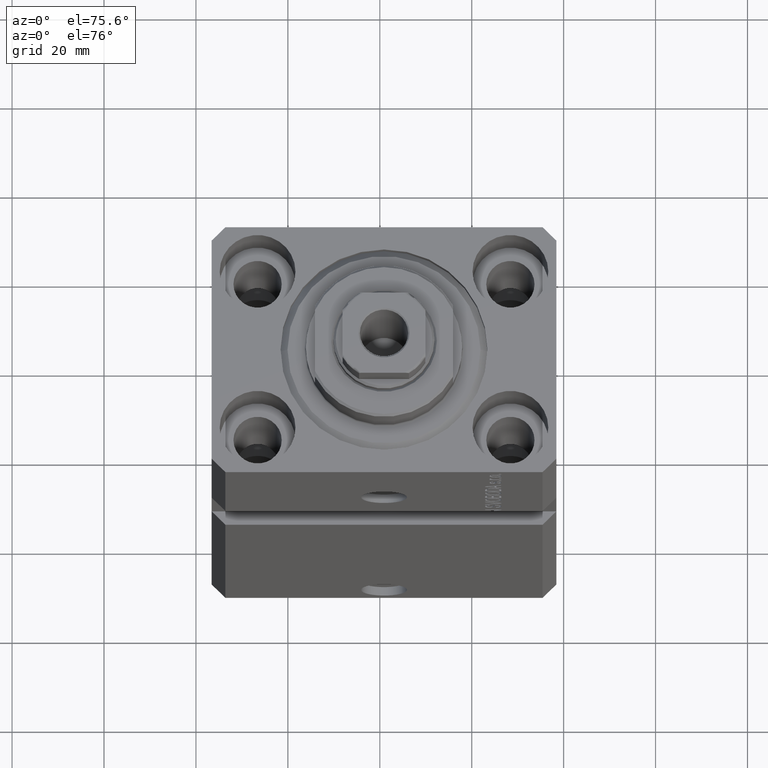
[diagram: clean part render]
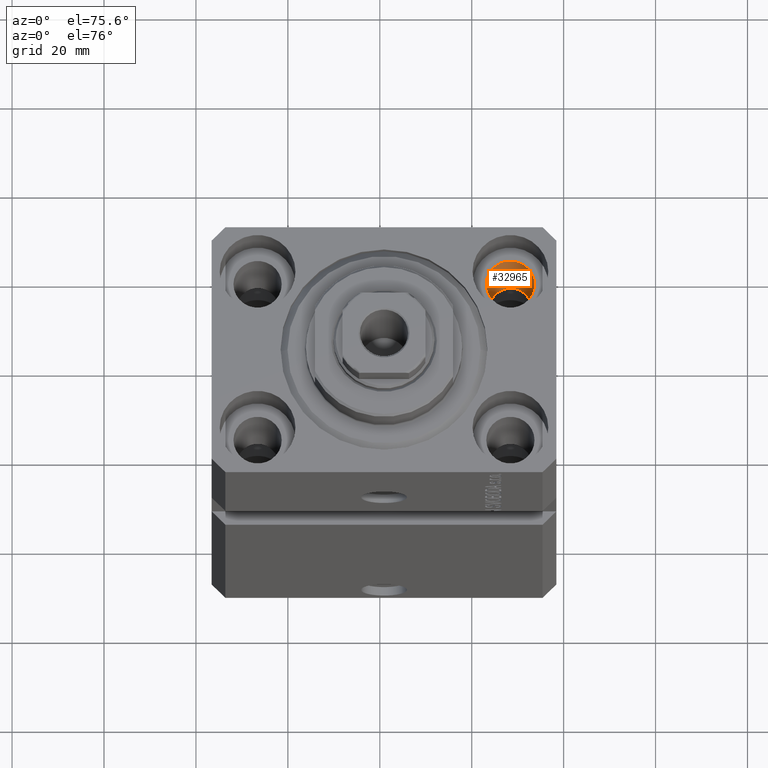
[diagram: same view with one face highlighted and labeled with its STEP entity id]
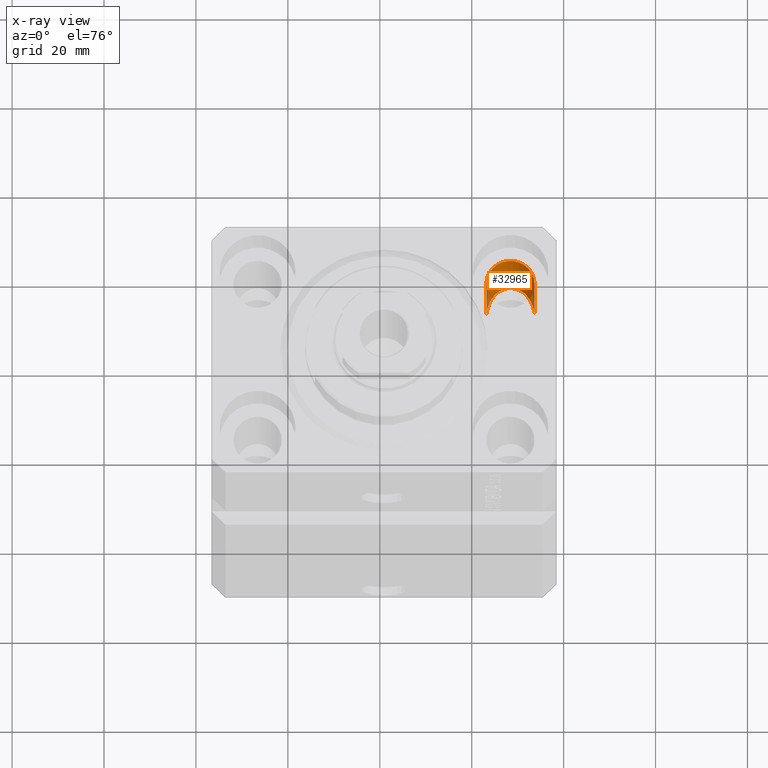
[diagram: x-ray of the same camera — body ghosted, the highlighted face saturated]
A machine part, auxiliary view. The second image highlights one B-rep face of the part: STEP entity #32965.
The next image is the same camera in x-ray: the body ghosted, the highlighted face saturated — about 6% of this face is hidden behind the body in this view.
In plain terms, the highlighted cylindrical surface (edge-blend (fillet) strip) has radius 5.25 mm, axis along (0, 0, 1).
Its self-contained STEP definition (entity closure, byte-faithful):
#533 = CARTESIAN_POINT ( 'NONE',  ( 32.74999999999999289, 17.50000000000001066, -110.0000000000000000 ) ) ;
#837 = ORIENTED_EDGE ( 'NONE', *, *, #5471, .F. ) ;
#5471 = EDGE_CURVE ( 'NONE', #39230, #14020, #45154, .T. ) ;
#7125 = VERTEX_POINT ( 'NONE', #20226 ) ;
#9667 = CYLINDRICAL_SURFACE ( 'NONE', #16261, 5.249999999999997335 ) ;
#10891 = EDGE_CURVE ( 'NONE', #7125, #26152, #36530, .T. ) ;
#10941 = CARTESIAN_POINT ( 'NONE',  ( 22.25000000000000711, 17.50000000000001421, -39.99999999999999289 ) ) ;
#12034 = AXIS2_PLACEMENT_3D ( 'NONE', #46013, #45303, #27829 ) ;
#12057 = EDGE_CURVE ( 'NONE', #39230, #7125, #22106, .T. ) ;
#14020 = VERTEX_POINT ( 'NONE', #38827 ) ;
#16261 = AXIS2_PLACEMENT_3D ( 'NONE', #30766, #27715, #42120 ) ;
#18010 = EDGE_CURVE ( 'NONE', #26152, #14020, #32479, .T. ) ;
#20226 = CARTESIAN_POINT ( 'NONE',  ( 32.74999999999999289, 17.50000000000001421, -39.99999999999999289 ) ) ;
#21281 = ORIENTED_EDGE ( 'NONE', *, *, #18010, .T. ) ;
#21630 = CARTESIAN_POINT ( 'NONE',  ( 22.25000000000000355, 28.00000000000000000, -29.50000000000001066 ) ) ;
#22106 =( BOUNDED_CURVE ( )  B_SPLINE_CURVE ( 3, ( #10941, #21630, #24954, #46481 ),
 .UNSPECIFIED., .F., .T. ) 
 B_SPLINE_CURVE_WITH_KNOTS ( ( 4, 4 ),
 ( 4.712388980384689674, 7.853981633974482790 ),
 .UNSPECIFIED. ) 
 CURVE ( )  GEOMETRIC_REPRESENTATION_ITEM ( )  RATIONAL_B_SPLINE_CURVE ( ( 1.000000000000000000, 0.3333333333333333703, 0.3333333333333333703, 1.000000000000000000 ) ) 
 REPRESENTATION_ITEM ( '' )  );
#22345 = DIRECTION ( 'NONE',  ( -0.000000000000000000, -0.000000000000000000, 1.000000000000000000 ) ) ;
#24954 = CARTESIAN_POINT ( 'NONE',  ( 32.74999999999999289, 28.00000000000000000, -29.50000000000001066 ) ) ;
#25174 = ORIENTED_EDGE ( 'NONE', *, *, #10891, .T. ) ;
#26152 = VERTEX_POINT ( 'NONE', #43796 ) ;
#27215 = CARTESIAN_POINT ( 'NONE',  ( 22.25000000000000000, 17.50000000000001066, -110.0000000000000000 ) ) ;
#27260 = FACE_OUTER_BOUND ( 'NONE', #38458, .T. ) ;
#27715 = DIRECTION ( 'NONE',  ( -0.000000000000000000, -0.000000000000000000, 1.000000000000000000 ) ) ;
#27829 = DIRECTION ( 'NONE',  ( 1.000000000000000000, 0.000000000000000000, 0.000000000000000000 ) ) ;
#30766 = CARTESIAN_POINT ( 'NONE',  ( 27.49999999999999645, 17.50000000000001066, -110.0000000000000000 ) ) ;
#31488 = VECTOR ( 'NONE', #22345, 1000.000000000000000 ) ;
#32479 = CIRCLE ( 'NONE', #12034, 5.249999999999997335 ) ;
#32965 = ADVANCED_FACE ( 'NONE', ( #27260 ), #9667, .F. ) ;
#32980 = ORIENTED_EDGE ( 'NONE', *, *, #12057, .T. ) ;
#36530 = LINE ( 'NONE', #533, #31488 ) ;
#38417 = CARTESIAN_POINT ( 'NONE',  ( 22.25000000000000711, 17.50000000000001421, -39.99999999999999289 ) ) ;
#38458 = EDGE_LOOP ( 'NONE', ( #837, #32980, #25174, #21281 ) ) ;
#38827 = CARTESIAN_POINT ( 'NONE',  ( 22.25000000000000000, 17.50000000000001066, -11.00000000000000000 ) ) ;
#39230 = VERTEX_POINT ( 'NONE', #38417 ) ;
#41249 = VECTOR ( 'NONE', #41614, 1000.000000000000000 ) ;
#41614 = DIRECTION ( 'NONE',  ( -0.000000000000000000, -0.000000000000000000, 1.000000000000000000 ) ) ;
#42120 = DIRECTION ( 'NONE',  ( 1.000000000000000000, 0.000000000000000000, 0.000000000000000000 ) ) ;
#43796 = CARTESIAN_POINT ( 'NONE',  ( 32.74999999999999289, 17.50000000000001066, -11.00000000000000000 ) ) ;
#45154 = LINE ( 'NONE', #27215, #41249 ) ;
#45303 = DIRECTION ( 'NONE',  ( 0.000000000000000000, 0.000000000000000000, 1.000000000000000000 ) ) ;
#46013 = CARTESIAN_POINT ( 'NONE',  ( 27.49999999999999645, 17.50000000000001066, -11.00000000000000000 ) ) ;
#46481 = CARTESIAN_POINT ( 'NONE',  ( 32.74999999999999289, 17.50000000000001421, -39.99999999999999289 ) ) ;